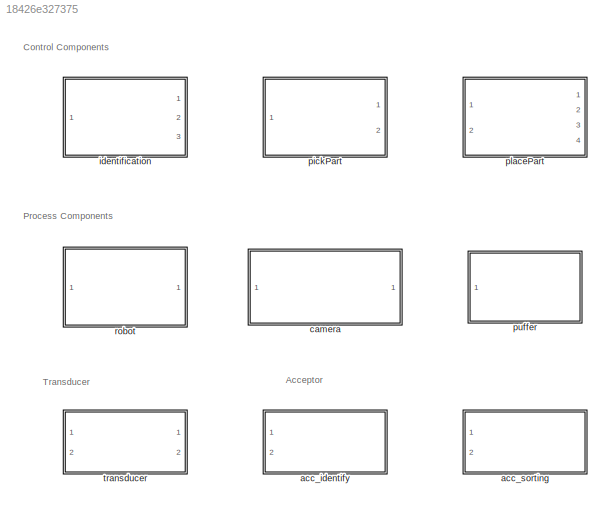
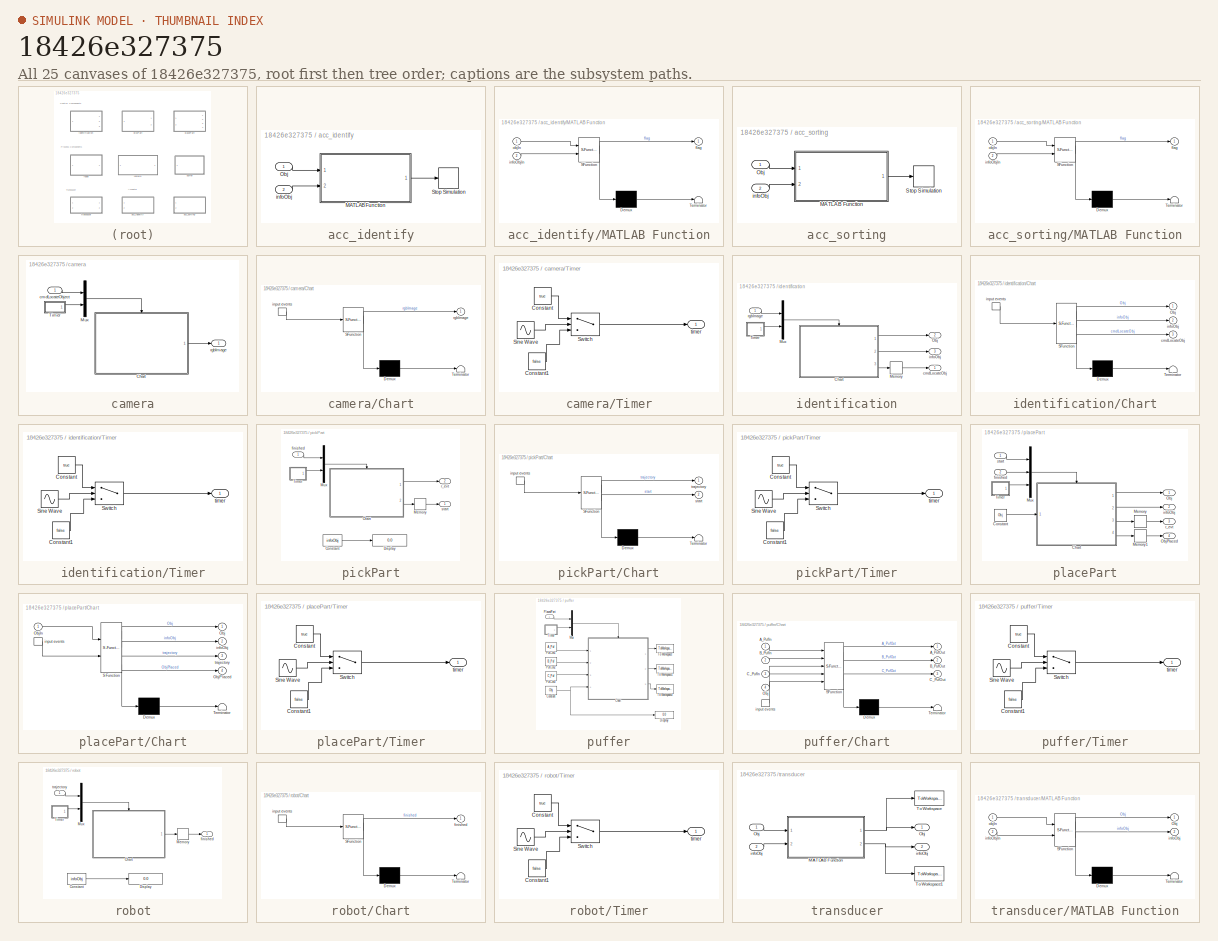
[diagram: thumbnail index - all 25 canvases of the model, root first then tree order]
MODEL slx_18426e327375
KIND model
CONFIG AbsTol = auto
CONFIG EnableMultiTasking = on
CONFIG FixedStep = 0.001
CONFIG MaxStep = auto
CONFIG MinStep = auto
CONFIG RelTol = 1e-3
CONFIG SampleTimeConstraint = Unconstrained
CONFIG Solver = FixedStepDiscrete
CONFIG SolverName = FixedStepDiscrete
CONFIG StartTime = 0.0
CONFIG StopTime = inf
BLOCK [SubSystem] acc_identify
  Ports = [2]
  RequestExecContextInheritance = off
  Variant = off
BLOCK [SubSystem] acc_identify/MATLAB Function
  ErrorFcn = Stateflow.Translate.translate
  PermitHierarchicalResolution = ExplicitOnly
  Ports = [2, 1]
  RequestExecContextInheritance = off
  SFBlockType = MATLAB Function
  TreatAsAtomicUnit = on
  Variant = off
BLOCK [Demux] acc_identify/MATLAB Function/ Demux 
  Outputs = 1
  Ports = [1, 1]
BLOCK [S-Function] acc_identify/MATLAB Function/ SFunction 
  EnableBusSupport = off
  FunctionName = sf_sfun
  PortCounts = [2 2]
  Ports = [2, 2]
  SFcnIsStateOwnerBlock = off
  SFunctionDeploymentMode = off
  Tag = Stateflow S-Function MB 5
BLOCK [Terminator] acc_identify/MATLAB Function/ Terminator 
BLOCK [Outport] acc_identify/MATLAB Function/flag
  IconDisplay = Port number
BLOCK [Inport] acc_identify/MATLAB Function/infoObjIn
  IconDisplay = Port number
  Port = 2
BLOCK [Inport] acc_identify/MATLAB Function/objIn
  IconDisplay = Port number
BLOCK [Inport] acc_identify/Obj 
  IconDisplay = Port number
BLOCK [Stop] acc_identify/Stop Simulation
BLOCK [Inport] acc_identify/infoObj
  IconDisplay = Port number
  Port = 2
BLOCK [SubSystem] acc_sorting
  Ports = [2]
  RequestExecContextInheritance = off
  Variant = off
BLOCK [SubSystem] acc_sorting/MATLAB Function
  ErrorFcn = Stateflow.Translate.translate
  PermitHierarchicalResolution = ExplicitOnly
  Ports = [2, 1]
  RequestExecContextInheritance = off
  SFBlockType = MATLAB Function
  TreatAsAtomicUnit = on
  Variant = off
BLOCK [Demux] acc_sorting/MATLAB Function/ Demux 
  Outputs = 1
  Ports = [1, 1]
BLOCK [S-Function] acc_sorting/MATLAB Function/ SFunction 
  EnableBusSupport = off
  FunctionName = sf_sfun
  PortCounts = [2 2]
  Ports = [2, 2]
  SFcnIsStateOwnerBlock = off
  SFunctionDeploymentMode = off
  Tag = Stateflow S-Function MB 10
BLOCK [Terminator] acc_sorting/MATLAB Function/ Terminator 
BLOCK [Outport] acc_sorting/MATLAB Function/flag
  IconDisplay = Port number
BLOCK [Inport] acc_sorting/MATLAB Function/infoObjIn
  IconDisplay = Port number
  Port = 2
BLOCK [Inport] acc_sorting/MATLAB Function/objIn
  IconDisplay = Port number
BLOCK [Inport] acc_sorting/Obj 
  IconDisplay = Port number
BLOCK [Stop] acc_sorting/Stop Simulation
BLOCK [Inport] acc_sorting/infoObj
  IconDisplay = Port number
  Port = 2
BLOCK [SubSystem] camera
  Ports = [1, 1]
  RequestExecContextInheritance = off
  Variant = off
BLOCK [SubSystem] camera/Chart
  ErrorFcn = Stateflow.Translate.translate
  PermitHierarchicalResolution = ExplicitOnly
  Ports = [0, 1, 0, 1]
  RequestExecContextInheritance = off
  SFBlockType = Chart
  TreatAsAtomicUnit = on
  Variant = off
BLOCK [Demux] camera/Chart/ Demux 
  Outputs = 1
  Ports = [1, 1]
BLOCK [S-Function] camera/Chart/ SFunction 
  EnableBusSupport = off
  FunctionName = sf_sfun
  PortCounts = [1 2]
  Ports = [1, 2]
  SFcnIsStateOwnerBlock = off
  SFunctionDeploymentMode = off
  Tag = Stateflow S-Function MB 3
BLOCK [Terminator] camera/Chart/ Terminator 
BLOCK [TriggerPort] camera/Chart/ input events 
  Ports = [0, 1]
  ShowOutputPort = on
  StatesWhenEnabling = held
  TriggerType = either
  VariantControl = Variant
BLOCK [Outport] camera/Chart/rgbImage
  IconDisplay = Port number
BLOCK [Mux] camera/Mux
  DisplayOption = bar
  Inputs = 2
  Ports = [2, 1]
BLOCK [SubSystem] camera/Timer
  Ports = [0, 1]
  RequestExecContextInheritance = off
  Variant = off
BLOCK [Constant] camera/Timer/Constant
  Value = true
BLOCK [Constant] camera/Timer/Constant1
  Value = false
BLOCK [Sin] camera/Timer/Sine Wave
  Frequency = 100
  Ports = [0, 1]
  SampleTime = 0
BLOCK [Switch] camera/Timer/Switch
  Criteria = u2 > Threshold
  InputSameDT = off
  SaturateOnIntegerOverflow = off
BLOCK [Outport] camera/Timer/timer
  IconDisplay = Port number
BLOCK [Inport] camera/cmdLocateObject
  IconDisplay = Port number
BLOCK [Outport] camera/rgbImage
  IconDisplay = Port number
BLOCK [SubSystem] identification
  Ports = [1, 3]
  RequestExecContextInheritance = off
  Variant = off
BLOCK [SubSystem] identification/Chart
  ErrorFcn = Stateflow.Translate.translate
  PermitHierarchicalResolution = ExplicitOnly
  Ports = [0, 3, 0, 1]
  RequestExecContextInheritance = off
  SFBlockType = Chart
  TreatAsAtomicUnit = on
  Variant = off
BLOCK [Demux] identification/Chart/ Demux 
  Outputs = 1
  Ports = [1, 1]
BLOCK [S-Function] identification/Chart/ SFunction 
  EnableBusSupport = off
  FunctionName = sf_sfun
  PortCounts = [1 4]
  Ports = [1, 4]
  SFcnIsStateOwnerBlock = off
  SFunctionDeploymentMode = off
  Tag = Stateflow S-Function MB 1
BLOCK [Terminator] identification/Chart/ Terminator 
BLOCK [TriggerPort] identification/Chart/ input events 
  Ports = [0, 1]
  ShowOutputPort = on
  StatesWhenEnabling = held
  TriggerType = either
  VariantControl = Variant
BLOCK [Outport] identification/Chart/Obj
  IconDisplay = Port number
BLOCK [Outport] identification/Chart/cmdLocateObj
  IconDisplay = Port number
  Port = 3
BLOCK [Outport] identification/Chart/infoObj
  IconDisplay = Port number
  Port = 2
BLOCK [Memory] identification/Memory
BLOCK [Mux] identification/Mux
  DisplayOption = bar
  Inputs = 2
  Ports = [2, 1]
BLOCK [Outport] identification/Obj
  IconDisplay = Port number
  Port = 2
BLOCK [SubSystem] identification/Timer
  Ports = [0, 1]
  RequestExecContextInheritance = off
  Variant = off
BLOCK [Constant] identification/Timer/Constant
  Value = true
BLOCK [Constant] identification/Timer/Constant1
  Value = false
BLOCK [Sin] identification/Timer/Sine Wave
  Frequency = 100
  Ports = [0, 1]
  SampleTime = 0
BLOCK [Switch] identification/Timer/Switch
  Criteria = u2 > Threshold
  InputSameDT = off
  SaturateOnIntegerOverflow = off
BLOCK [Outport] identification/Timer/timer
  IconDisplay = Port number
BLOCK [Outport] identification/cmdLocateObj
  IconDisplay = Port number
BLOCK [Outport] identification/infoObj
  IconDisplay = Port number
  Port = 3
BLOCK [Inport] identification/rgbImage
  IconDisplay = Port number
BLOCK [SubSystem] pickPart
  Ports = [1, 2]
  RequestExecContextInheritance = off
  Variant = off
BLOCK [SubSystem] pickPart/Chart
  ErrorFcn = Stateflow.Translate.translate
  PermitHierarchicalResolution = ExplicitOnly
  Ports = [0, 2, 0, 1]
  RequestExecContextInheritance = off
  SFBlockType = Chart
  TreatAsAtomicUnit = on
  Variant = off
BLOCK [Demux] pickPart/Chart/ Demux 
  Outputs = 1
  Ports = [1, 1]
BLOCK [S-Function] pickPart/Chart/ SFunction 
  EnableBusSupport = off
  FunctionName = sf_sfun
  PortCounts = [1 3]
  Ports = [1, 3]
  SFcnIsStateOwnerBlock = off
  SFunctionDeploymentMode = off
  Tag = Stateflow S-Function MB 6
BLOCK [Terminator] pickPart/Chart/ Terminator 
BLOCK [TriggerPort] pickPart/Chart/ input events 
  Ports = [0, 1]
  ShowOutputPort = on
  StatesWhenEnabling = held
  TriggerType = either
  VariantControl = Variant
BLOCK [Outport] pickPart/Chart/start
  IconDisplay = Port number
  Port = 2
BLOCK [Outport] pickPart/Chart/trajectory
  IconDisplay = Port number
BLOCK [Constant] pickPart/Constant
  Value = infoObj
BLOCK [Display] pickPart/Display
  Decimation = 1
  Ports = [1]
BLOCK [Memory] pickPart/Memory
BLOCK [Mux] pickPart/Mux
  DisplayOption = bar
  Inputs = 2
  Ports = [2, 1]
BLOCK [SubSystem] pickPart/Timer
  Ports = [0, 1]
  RequestExecContextInheritance = off
  Variant = off
BLOCK [Constant] pickPart/Timer/Constant
  Value = true
BLOCK [Constant] pickPart/Timer/Constant1
  Value = false
BLOCK [Sin] pickPart/Timer/Sine Wave
  Frequency = 100
  Ports = [0, 1]
  SampleTime = 0
BLOCK [Switch] pickPart/Timer/Switch
  Criteria = u2 > Threshold
  InputSameDT = off
  SaturateOnIntegerOverflow = off
BLOCK [Outport] pickPart/Timer/timer
  IconDisplay = Port number
BLOCK [Inport] pickPart/finished
  IconDisplay = Port number
BLOCK [Outport] pickPart/r_evt
  IconDisplay = Port number
  Port = 2
BLOCK [Outport] pickPart/start
  IconDisplay = Port number
BLOCK [SubSystem] placePart
  Ports = [2, 4]
  RequestExecContextInheritance = off
  Variant = off
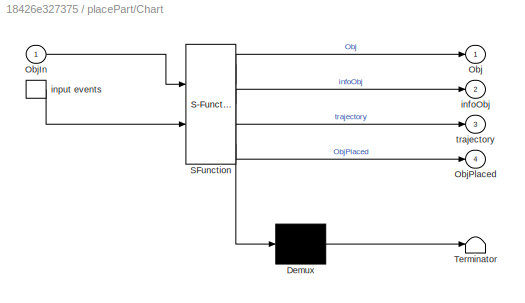
BLOCK [SubSystem] placePart/Chart
  ErrorFcn = Stateflow.Translate.translate
  PermitHierarchicalResolution = ExplicitOnly
  Ports = [1, 4, 0, 1]
  RequestExecContextInheritance = off
  SFBlockType = Chart
  TreatAsAtomicUnit = on
  Variant = off
BLOCK [Demux] placePart/Chart/ Demux 
  Outputs = 1
  Ports = [1, 1]
BLOCK [S-Function] placePart/Chart/ SFunction 
  EnableBusSupport = off
  FunctionName = sf_sfun
  PortCounts = [2 5]
  Ports = [2, 5]
  SFcnIsStateOwnerBlock = off
  SFunctionDeploymentMode = off
  Tag = Stateflow S-Function MB 7
BLOCK [Terminator] placePart/Chart/ Terminator 
BLOCK [TriggerPort] placePart/Chart/ input events 
  Ports = [0, 1]
  ShowOutputPort = on
  StatesWhenEnabling = held
  TriggerType = either
  VariantControl = Variant
BLOCK [Outport] placePart/Chart/Obj
  IconDisplay = Port number
BLOCK [Inport] placePart/Chart/ObjIn
  IconDisplay = Port number
BLOCK [Outport] placePart/Chart/ObjPlaced
  IconDisplay = Port number
  Port = 4
BLOCK [Outport] placePart/Chart/infoObj
  IconDisplay = Port number
  Port = 2
BLOCK [Outport] placePart/Chart/trajectory
  IconDisplay = Port number
  Port = 3
BLOCK [Constant] placePart/Constant
  Value = Obj
BLOCK [Memory] placePart/Memory
BLOCK [Memory] placePart/Memory1
BLOCK [Mux] placePart/Mux
  DisplayOption = bar
  Inputs = 3
  Ports = [3, 1]
BLOCK [Outport] placePart/Obj
  IconDisplay = Port number
BLOCK [Outport] placePart/ObjPlaced
  IconDisplay = Port number
  Port = 4
BLOCK [SubSystem] placePart/Timer
  Ports = [0, 1]
  RequestExecContextInheritance = off
  Variant = off
BLOCK [Constant] placePart/Timer/Constant
  Value = true
BLOCK [Constant] placePart/Timer/Constant1
  Value = false
BLOCK [Sin] placePart/Timer/Sine Wave
  Frequency = 100
  Ports = [0, 1]
  SampleTime = 0
BLOCK [Switch] placePart/Timer/Switch
  Criteria = u2 > Threshold
  InputSameDT = off
  SaturateOnIntegerOverflow = off
BLOCK [Outport] placePart/Timer/timer
  IconDisplay = Port number
BLOCK [Inport] placePart/finished
  IconDisplay = Port number
  Port = 2
BLOCK [Outport] placePart/infoObj
  IconDisplay = Port number
  Port = 2
BLOCK [Outport] placePart/r_evt
  IconDisplay = Port number
  Port = 3
BLOCK [Inport] placePart/start
  IconDisplay = Port number
BLOCK [SubSystem] puffer
  Ports = [1]
  RequestExecContextInheritance = off
  Variant = off
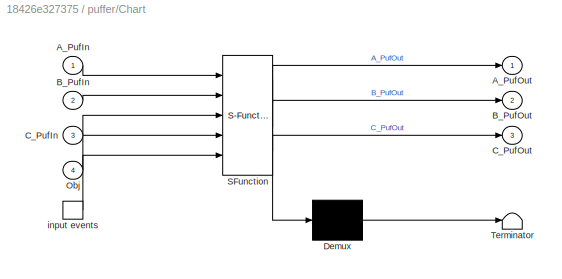
BLOCK [SubSystem] puffer/Chart
  ErrorFcn = Stateflow.Translate.translate
  PermitHierarchicalResolution = ExplicitOnly
  Ports = [4, 3, 0, 1]
  RequestExecContextInheritance = off
  SFBlockType = Chart
  TreatAsAtomicUnit = on
  Variant = off
BLOCK [Demux] puffer/Chart/ Demux 
  Outputs = 1
  Ports = [1, 1]
BLOCK [S-Function] puffer/Chart/ SFunction 
  EnableBusSupport = off
  FunctionName = sf_sfun
  PortCounts = [5 4]
  Ports = [5, 4]
  SFcnIsStateOwnerBlock = off
  SFunctionDeploymentMode = off
  Tag = Stateflow S-Function MB 11
BLOCK [Terminator] puffer/Chart/ Terminator 
BLOCK [TriggerPort] puffer/Chart/ input events 
  Ports = [0, 1]
  ShowOutputPort = on
  StatesWhenEnabling = held
  TriggerType = either
  VariantControl = Variant
BLOCK [Inport] puffer/Chart/A_PufIn
  IconDisplay = Port number
BLOCK [Outport] puffer/Chart/A_PufOut
  IconDisplay = Port number
BLOCK [Inport] puffer/Chart/B_PufIn
  IconDisplay = Port number
  Port = 2
BLOCK [Outport] puffer/Chart/B_PufOut
  IconDisplay = Port number
  Port = 2
BLOCK [Inport] puffer/Chart/C_PufIn
  IconDisplay = Port number
  Port = 3
BLOCK [Outport] puffer/Chart/C_PufOut
  IconDisplay = Port number
  Port = 3
BLOCK [Inport] puffer/Chart/Obj
  IconDisplay = Port number
  Port = 4
BLOCK [Constant] puffer/Constant
  Value = Obj
BLOCK [Display] puffer/Display
  Decimation = 1
  Ports = [1]
BLOCK [Mux] puffer/Mux
  DisplayOption = bar
  Inputs = 2
  Ports = [2, 1]
BLOCK [Inport] puffer/PlacedPart
  IconDisplay = Port number
BLOCK [Constant] puffer/PufCon1
  Value = A_Puf
BLOCK [Constant] puffer/PufCon2
  Value = B_Puf
BLOCK [Constant] puffer/PufCon3
  Value = C_Puf
BLOCK [SubSystem] puffer/Timer
  Ports = [0, 1]
  RequestExecContextInheritance = off
  Variant = off
BLOCK [Constant] puffer/Timer/Constant
  Value = true
BLOCK [Constant] puffer/Timer/Constant1
  Value = false
BLOCK [Sin] puffer/Timer/Sine Wave
  Frequency = 100
  Ports = [0, 1]
  SampleTime = 0
BLOCK [Switch] puffer/Timer/Switch
  Criteria = u2 > Threshold
  InputSameDT = off
  SaturateOnIntegerOverflow = off
BLOCK [Outport] puffer/Timer/timer
  IconDisplay = Port number
BLOCK [ToWorkspace] puffer/To Workspace
  MaxDataPoints = 1
  Ports = [1]
  SampleTime = -1
  VariableName = A_Puf
BLOCK [ToWorkspace] puffer/To Workspace1
  MaxDataPoints = 1
  Ports = [1]
  SampleTime = -1
  VariableName = B_Puf
BLOCK [ToWorkspace] puffer/To Workspace2
  MaxDataPoints = 1
  Ports = [1]
  SampleTime = -1
  VariableName = C_Puf
BLOCK [SubSystem] robot
  Ports = [1, 1]
  RequestExecContextInheritance = off
  Variant = off
BLOCK [SubSystem] robot/Chart
  ErrorFcn = Stateflow.Translate.translate
  PermitHierarchicalResolution = ExplicitOnly
  Ports = [0, 1, 0, 1]
  RequestExecContextInheritance = off
  SFBlockType = Chart
  TreatAsAtomicUnit = on
  Variant = off
BLOCK [Demux] robot/Chart/ Demux 
  Outputs = 1
  Ports = [1, 1]
BLOCK [S-Function] robot/Chart/ SFunction 
  EnableBusSupport = off
  FunctionName = sf_sfun
  PortCounts = [1 2]
  Ports = [1, 2]
  SFcnIsStateOwnerBlock = off
  SFunctionDeploymentMode = off
  Tag = Stateflow S-Function MB 9
BLOCK [Terminator] robot/Chart/ Terminator 
BLOCK [TriggerPort] robot/Chart/ input events 
  Ports = [0, 1]
  ShowOutputPort = on
  StatesWhenEnabling = held
  TriggerType = either
  VariantControl = Variant
BLOCK [Outport] robot/Chart/finished
  IconDisplay = Port number
BLOCK [Constant] robot/Constant
  Value = infoObj
BLOCK [Display] robot/Display
  Decimation = 1
  Ports = [1]
BLOCK [Memory] robot/Memory
BLOCK [Mux] robot/Mux
  DisplayOption = bar
  Inputs = 2
  Ports = [2, 1]
BLOCK [SubSystem] robot/Timer
  Ports = [0, 1]
  RequestExecContextInheritance = off
  Variant = off
BLOCK [Constant] robot/Timer/Constant
  Value = true
BLOCK [Constant] robot/Timer/Constant1
  Value = false
BLOCK [Sin] robot/Timer/Sine Wave
  Frequency = 100
  Ports = [0, 1]
  SampleTime = 0
BLOCK [Switch] robot/Timer/Switch
  Criteria = u2 > Threshold
  InputSameDT = off
  SaturateOnIntegerOverflow = off
BLOCK [Outport] robot/Timer/timer
  IconDisplay = Port number
BLOCK [Outport] robot/finished
  IconDisplay = Port number
BLOCK [Inport] robot/trajectory
  IconDisplay = Port number
BLOCK [SubSystem] transducer
  Ports = [2, 2]
  RequestExecContextInheritance = off
  Variant = off
BLOCK [SubSystem] transducer/MATLAB Function
  ErrorFcn = Stateflow.Translate.translate
  PermitHierarchicalResolution = ExplicitOnly
  Ports = [2, 2]
  RequestExecContextInheritance = off
  SFBlockType = MATLAB Function
  TreatAsAtomicUnit = on
  Variant = off
BLOCK [Demux] transducer/MATLAB Function/ Demux 
  Outputs = 1
  Ports = [1, 1]
BLOCK [S-Function] transducer/MATLAB Function/ SFunction 
  EnableBusSupport = off
  FunctionName = sf_sfun
  PortCounts = [2 3]
  Ports = [2, 3]
  SFcnIsStateOwnerBlock = off
  SFunctionDeploymentMode = off
  Tag = Stateflow S-Function MB 4
BLOCK [Terminator] transducer/MATLAB Function/ Terminator 
BLOCK [Outport] transducer/MATLAB Function/Obj
  IconDisplay = Port number
BLOCK [Outport] transducer/MATLAB Function/infoObj
  IconDisplay = Port number
  Port = 2
BLOCK [Inport] transducer/MATLAB Function/infoObjIn
  IconDisplay = Port number
  Port = 2
BLOCK [Inport] transducer/MATLAB Function/objIn
  IconDisplay = Port number
BLOCK [Outport] transducer/Obj
  IconDisplay = Port number
BLOCK [Inport] transducer/Obj 
  IconDisplay = Port number
BLOCK [ToWorkspace] transducer/To Workspace
  MaxDataPoints = 1
  Ports = [1]
  SampleTime = -1
  VariableName = Obj
BLOCK [ToWorkspace] transducer/To Workspace1
  MaxDataPoints = 1
  Ports = [1]
  SampleTime = -1
  VariableName = infoObj
BLOCK [Inport] transducer/infoObj
  IconDisplay = Port number
  Port = 2
BLOCK [Outport] transducer/infoObj 
  IconDisplay = Port number
  Port = 2
ANNOTATION (root): Acceptor
ANNOTATION (root): Control Components
ANNOTATION (root): Process Components
ANNOTATION (root): Transducer
LINE acc_identify/MATLAB Function:1 -> acc_identify/Stop Simulation:1
LINE acc_identify/Obj :1 -> acc_identify/MATLAB Function:1
LINE acc_identify/infoObj:1 -> acc_identify/MATLAB Function:2
LINE acc_sorting/MATLAB Function:1 -> acc_sorting/Stop Simulation:1
LINE acc_sorting/Obj :1 -> acc_sorting/MATLAB Function:1
LINE acc_sorting/infoObj:1 -> acc_sorting/MATLAB Function:2
LINE camera/Chart:1 -> camera/rgbImage:1
LINE camera/Mux:1 -> camera/Chart:trigger
LINE camera/Timer/Constant1:1 -> camera/Timer/Switch:3
LINE camera/Timer/Constant:1 -> camera/Timer/Switch:1
LINE camera/Timer/Sine Wave:1 -> camera/Timer/Switch:2
LINE camera/Timer/Switch:1 -> camera/Timer/timer:1
LINE camera/Timer:1 -> camera/Mux:2
LINE camera/cmdLocateObject:1 -> camera/Mux:1
LINE identification/Chart:1 -> identification/Obj:1
LINE identification/Chart:2 -> identification/infoObj:1
LINE identification/Chart:3 -> identification/Memory:1
LINE identification/Memory:1 -> identification/cmdLocateObj:1
LINE identification/Mux:1 -> identification/Chart:trigger
LINE identification/Timer/Constant1:1 -> identification/Timer/Switch:3
LINE identification/Timer/Constant:1 -> identification/Timer/Switch:1
LINE identification/Timer/Sine Wave:1 -> identification/Timer/Switch:2
LINE identification/Timer/Switch:1 -> identification/Timer/timer:1
LINE identification/Timer:1 -> identification/Mux:2
LINE identification/rgbImage:1 -> identification/Mux:1
LINE pickPart/Chart:1 -> pickPart/r_evt:1
LINE pickPart/Chart:2 -> pickPart/Memory:1
LINE pickPart/Constant:1 -> pickPart/Display:1
LINE pickPart/Memory:1 -> pickPart/start:1
LINE pickPart/Mux:1 -> pickPart/Chart:trigger
LINE pickPart/Timer/Constant1:1 -> pickPart/Timer/Switch:3
LINE pickPart/Timer/Constant:1 -> pickPart/Timer/Switch:1
LINE pickPart/Timer/Sine Wave:1 -> pickPart/Timer/Switch:2
LINE pickPart/Timer/Switch:1 -> pickPart/Timer/timer:1
LINE pickPart/Timer:1 -> pickPart/Mux:2
LINE pickPart/finished:1 -> pickPart/Mux:1
LINE placePart/Chart:1 -> placePart/Obj:1
LINE placePart/Chart:2 -> placePart/infoObj:1
LINE placePart/Chart:3 -> placePart/Memory:1
LINE placePart/Chart:4 -> placePart/Memory1:1
LINE placePart/Constant:1 -> placePart/Chart:1
LINE placePart/Memory1:1 -> placePart/ObjPlaced:1
LINE placePart/Memory:1 -> placePart/r_evt:1
LINE placePart/Mux:1 -> placePart/Chart:trigger
LINE placePart/Timer/Constant1:1 -> placePart/Timer/Switch:3
LINE placePart/Timer/Constant:1 -> placePart/Timer/Switch:1
LINE placePart/Timer/Sine Wave:1 -> placePart/Timer/Switch:2
LINE placePart/Timer/Switch:1 -> placePart/Timer/timer:1
LINE placePart/Timer:1 -> placePart/Mux:3
LINE placePart/finished:1 -> placePart/Mux:2
LINE placePart/start:1 -> placePart/Mux:1
LINE puffer/Chart:1 -> puffer/To Workspace:1
LINE puffer/Chart:2 -> puffer/To Workspace1:1
LINE puffer/Chart:3 -> puffer/To Workspace2:1
NET puffer/Constant:1 -> puffer/Chart:4, puffer/Display:1
LINE puffer/Mux:1 -> puffer/Chart:trigger
LINE puffer/PlacedPart:1 -> puffer/Mux:1
LINE puffer/PufCon1:1 -> puffer/Chart:1
LINE puffer/PufCon2:1 -> puffer/Chart:2
LINE puffer/PufCon3:1 -> puffer/Chart:3
LINE puffer/Timer/Constant1:1 -> puffer/Timer/Switch:3
LINE puffer/Timer/Constant:1 -> puffer/Timer/Switch:1
LINE puffer/Timer/Sine Wave:1 -> puffer/Timer/Switch:2
LINE puffer/Timer/Switch:1 -> puffer/Timer/timer:1
LINE puffer/Timer:1 -> puffer/Mux:2
LINE robot/Chart:1 -> robot/Memory:1
LINE robot/Constant:1 -> robot/Display:1
LINE robot/Memory:1 -> robot/finished:1
LINE robot/Mux:1 -> robot/Chart:trigger
LINE robot/Timer/Constant1:1 -> robot/Timer/Switch:3
LINE robot/Timer/Constant:1 -> robot/Timer/Switch:1
LINE robot/Timer/Sine Wave:1 -> robot/Timer/Switch:2
LINE robot/Timer/Switch:1 -> robot/Timer/timer:1
LINE robot/Timer:1 -> robot/Mux:2
LINE robot/trajectory:1 -> robot/Mux:1
NET transducer/MATLAB Function:1 -> transducer/Obj:1, transducer/To Workspace:1
NET transducer/MATLAB Function:2 -> transducer/To Workspace1:1, transducer/infoObj :1
LINE transducer/Obj :1 -> transducer/MATLAB Function:1
LINE transducer/infoObj:1 -> transducer/MATLAB Function:2
note: NET lines group one-source signal fan-out (src -> all destinations, sorted); 1:1 wires keep LINE
CHART identification/Chart states=6 transitions=5
  STATE_LABEL 'idle'
  STATE_LABEL "locatePart\nen: ml.fprintf('CM.identification send cmdLocateObj to PM.camera\\n') "
  STATE_LABEL "identifyObject\nex: Obj = ml.ceil(ml.rand(1)*3);\n      ml.fprintf('CM.identification: Obj= %d\\n',Obj)"
  STATE_LABEL 'simplified object identification\nby random part type definition\n(possible types are 1, 2 or 3)'
  STATE_LABEL "identifyPosition\nen: infoObj = Obj;\n      ml.fprintf('CM.identification: infoObj= %d\\n',Obj)"
  STATE_LABEL 'simplified'
CHART camera/Chart states=2 transitions=3
  STATE_LABEL 'idle'
  STATE_LABEL "lookForObject\nex: ml.disp('PM.camera send rgbImage to CM.identification')"
CHART transducer/MATLAB Function states=1 transitions=1
  STATE_LABEL 'eML_blk_kernel()'
  STATE_LABEL 'SCRIPT:\nfunction [Obj,infoObj] = Transducer(objIn, infoObjIn)\n%Transducer\n%transfers and writes values to workspace only \n%perhaps it should also write A_Puf etc to WS\n\nObj = objIn;\ninfoObj = infoObjIn;\n% A_Puf = A_PufIn;\n% B_Puf = B_PufIn;\n% C_Puf = C_PufIn;\n% switch Obj\n%     case 1\n%         A_Puf = A_PufIn+1;\n%     case 2\n%         B_Puf = B_PufIn+1;\n%     case 3\n%         C_Puf = C_PufIn+1;\n%...<+19ch>'
CHART acc_identify/MATLAB Function states=1 transitions=1
  STATE_LABEL 'eML_blk_kernel()'
  STATE_LABEL "SCRIPT:\nfunction flag = AcceptorITask(objIn, infoObjIn)\n%#codegen\n\n%AcceptorITask determines if current identification task is finished\n\n\nif objIn == 0\n    flag = false;\nelse\n    flag = true;\n    disp('EF.transducer saved results in SES variables')\n    disp('EF.acc_identify STOPPED current SM')\nend\n\nend"
CHART pickPart/Chart states=5 transitions=5
  STATE_LABEL "idle\nex: ml.fprintf('CM.pickPart send trajectory_go to PM.robot\\n')"
  STATE_LABEL "approach\nex: ml.fprintf('CM.pickPart received finished from PM.robot\\n');\n      ml.fprintf('CM.pickPart send trajectory_pick to PM.robot\\n');"
  STATE_LABEL 'picking\n '
  STATE_LABEL 'depart'
  STATE_LABEL "finished\nen: ml.fprintf('CM.pickPart received finished from PM.robot\\n');\n      ml.fprintf('CM.pickPart send start to CM.placePart\\n');\n"
CHART placePart/Chart states=5 transitions=6
  STATE_LABEL 'idle\nen:Obj = ObjIn;'
  STATE_LABEL "approach\nen: ml.fprintf('CM.placePart received start\\n');\n      ml.fprintf('CM.placePart send trajectory_go to PM.robot\\n');"
  STATE_LABEL "placing\nen: ml.fprintf('CM.placePart received finish from PM.robot\\n');\n      ml.fprintf('CM.placePart send trajectory_place to PM.robot\\n');"
  STATE_LABEL "placed\nex: ml.fprintf('CM.placePart received finished (PLACING) from PM.robot\\n');\n      ml.fprintf('CM.placePart send trajectory_goHome to PM.robot\\n');"
  STATE_LABEL 'depart\nen: Obj = 0;\n      infoObj = 0;\n'
CHART robot/Chart states=2 transitions=4
  STATE_LABEL 'idle'
  STATE_LABEL 'move\nen:loc = ml.round(ml.rand(1)*20)+10;'
CHART acc_sorting/MATLAB Function states=1 transitions=1
  STATE_LABEL 'eML_blk_kernel()'
  STATE_LABEL "SCRIPT:\nfunction flag = AcceptorSTask(objIn, infoObjIn)\n%#codegen\n\n%AcceptorSTask determines if current sorting task is finished \n\n\nif objIn == 0\n    flag = true;\n    disp('EF.transducer saved results in SES variables')\n    disp('EF.acc_identify STOPPED current SM')\nelse\n    flag = false;\nend\n\nend"
CHART puffer/Chart states=1 transitions=15
  STATE_LABEL 'waitForPart'
